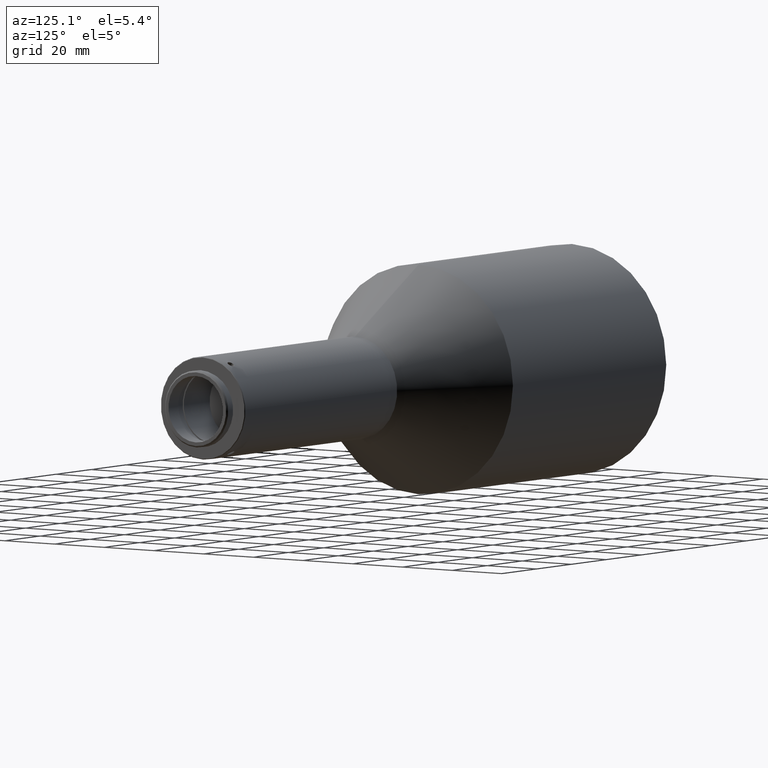
[diagram: clean part render]
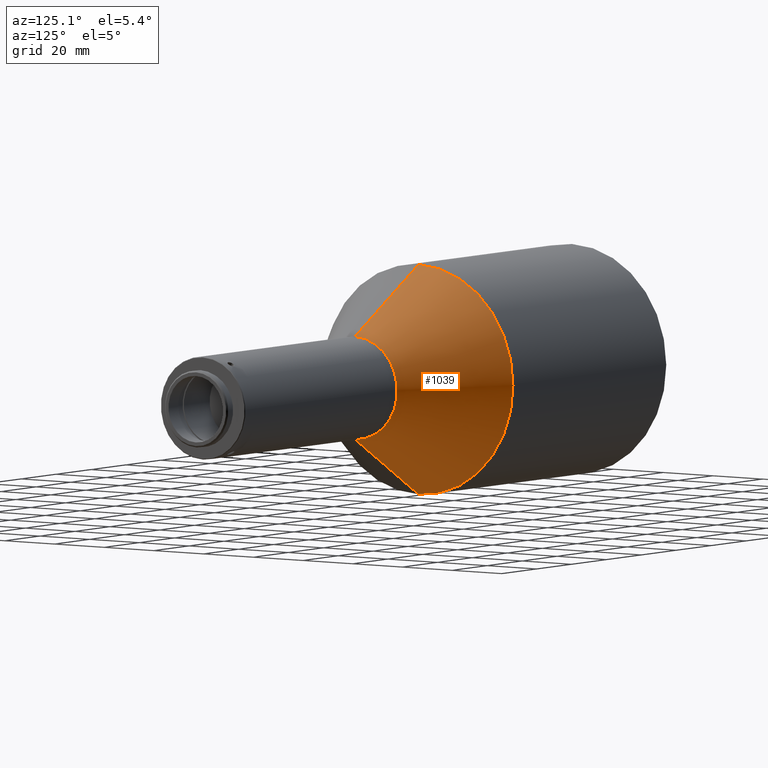
[diagram: same view with one face highlighted and labeled with its STEP entity id]
A machine part, auxiliary view. The second image highlights one B-rep face of the part: STEP entity #1039.
In plain terms, the highlighted conical surface has half-angle 29.982 deg.
Its self-contained STEP definition (entity closure, byte-faithful):
#13 = DIRECTION ( 'NONE',  ( 0.000000000000000000, 0.000000000000000000, 1.000000000000000000 ) ) ;
#65 = DIRECTION ( 'NONE',  ( -1.000000000000000000, 0.000000000000000000, 0.000000000000000000 ) ) ;
#173 = AXIS2_PLACEMENT_3D ( 'NONE', #959, #1514, #13 ) ;
#228 = AXIS2_PLACEMENT_3D ( 'NONE', #2143, #601, #1163 ) ;
#244 = CARTESIAN_POINT ( 'NONE',  ( 36.39999999999999858, 2.081899558550500280E-15, 17.00000000000000000 ) ) ;
#296 = EDGE_CURVE ( 'NONE', #1016, #1602, #839, .T. ) ;
#447 = CIRCLE ( 'NONE', #173, 17.00000000000000000 ) ;
#450 = DIRECTION ( 'NONE',  ( -0.8661855860485913050, 0.000000000000000000, 0.4997224534895931547 ) ) ;
#472 = VECTOR ( 'NONE', #450, 999.9999999999998863 ) ;
#545 = CARTESIAN_POINT ( 'NONE',  ( 1.554312234475219157E-12, 4.653657836759941941E-15, 38.00000000000000000 ) ) ;
#573 = EDGE_CURVE ( 'NONE', #945, #1129, #1585, .T. ) ;
#601 = DIRECTION ( 'NONE',  ( -1.000000000000000000, -0.000000000000000000, -0.000000000000000000 ) ) ;
#610 = AXIS2_PLACEMENT_3D ( 'NONE', #1231, #65, #1042 ) ;
#659 = EDGE_LOOP ( 'NONE', ( #1464, #2054, #1470, #2460 ) ) ;
#770 = EDGE_CURVE ( 'NONE', #1016, #945, #447, .T. ) ;
#813 = CARTESIAN_POINT ( 'NONE',  ( 36.39999999999999858, 0.000000000000000000, -17.00000000000000000 ) ) ;
#839 = LINE ( 'NONE', #2409, #472 ) ;
#855 = DIRECTION ( 'NONE',  ( -0.8661855860485913050, 6.119835031280923565E-17, -0.4997224534895931547 ) ) ;
#945 = VERTEX_POINT ( 'NONE', #813 ) ;
#959 = CARTESIAN_POINT ( 'NONE',  ( 36.39999999999999858, 0.000000000000000000, 0.000000000000000000 ) ) ;
#1016 = VERTEX_POINT ( 'NONE', #244 ) ;
#1039 = ADVANCED_FACE ( 'NONE', ( #1773 ), #2463, .T. ) ;
#1042 = DIRECTION ( 'NONE',  ( 0.000000000000000000, 0.000000000000000000, 1.000000000000000000 ) ) ;
#1129 = VERTEX_POINT ( 'NONE', #1601 ) ;
#1163 = DIRECTION ( 'NONE',  ( 0.000000000000000000, 0.000000000000000000, -1.000000000000000000 ) ) ;
#1224 = CIRCLE ( 'NONE', #228, 38.00000000000000000 ) ;
#1231 = CARTESIAN_POINT ( 'NONE',  ( 1.554312234475219560E-12, 0.000000000000000000, 0.000000000000000000 ) ) ;
#1464 = ORIENTED_EDGE ( 'NONE', *, *, #770, .T. ) ;
#1470 = ORIENTED_EDGE ( 'NONE', *, *, #2065, .F. ) ;
#1514 = DIRECTION ( 'NONE',  ( -1.000000000000000000, 0.000000000000000000, 0.000000000000000000 ) ) ;
#1585 = LINE ( 'NONE', #1791, #2459 ) ;
#1601 = CARTESIAN_POINT ( 'NONE',  ( 1.554312234475219157E-12, 0.000000000000000000, -38.00000000000000000 ) ) ;
#1602 = VERTEX_POINT ( 'NONE', #545 ) ;
#1773 = FACE_OUTER_BOUND ( 'NONE', #659, .T. ) ;
#1791 = CARTESIAN_POINT ( 'NONE',  ( 1.554312234475219560E-12, 4.653657836759941941E-15, -38.00000000000000000 ) ) ;
#2054 = ORIENTED_EDGE ( 'NONE', *, *, #573, .T. ) ;
#2065 = EDGE_CURVE ( 'NONE', #1602, #1129, #1224, .T. ) ;
#2143 = CARTESIAN_POINT ( 'NONE',  ( 1.554312234475219157E-12, 0.000000000000000000, 0.000000000000000000 ) ) ;
#2409 = CARTESIAN_POINT ( 'NONE',  ( 1.554312234475219560E-12, 0.000000000000000000, 38.00000000000000000 ) ) ;
#2459 = VECTOR ( 'NONE', #855, 999.9999999999998863 ) ;
#2460 = ORIENTED_EDGE ( 'NONE', *, *, #296, .F. ) ;
#2463 = CONICAL_SURFACE ( 'NONE', #610, 38.00000000000000000, 0.5232783221319938782 ) ;